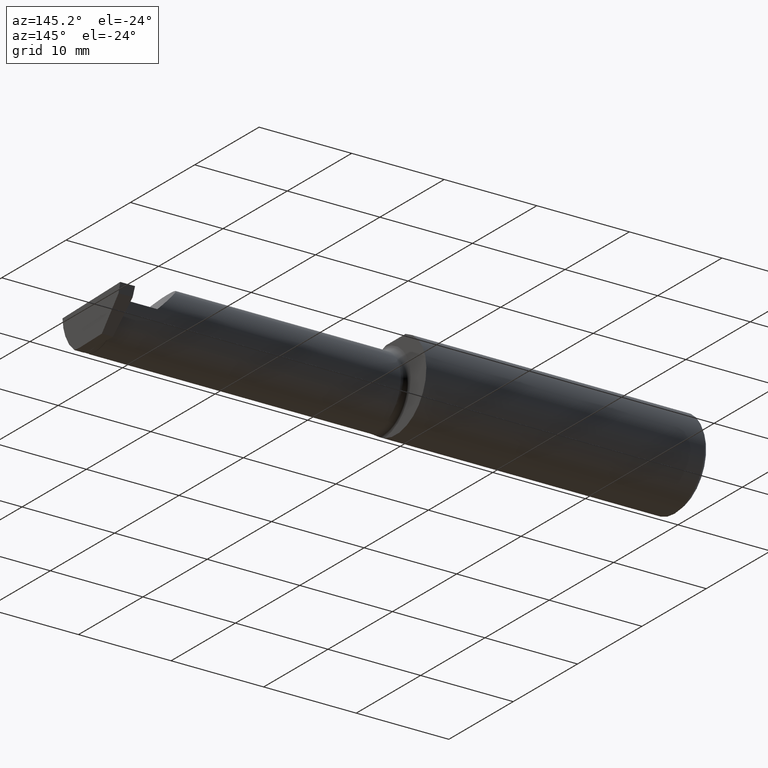
[diagram: clean part render]
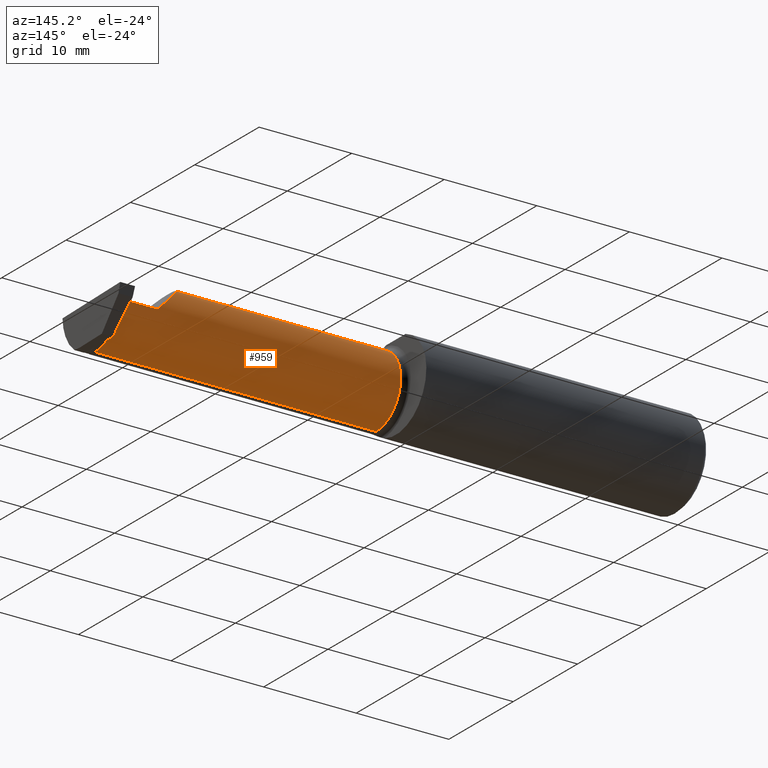
[diagram: same view with one face highlighted and labeled with its STEP entity id]
A machine part, auxiliary view. The second image highlights one B-rep face of the part: STEP entity #959.
In plain terms, the highlighted cylindrical surface (partial cylindrical patch) has radius 3.81 mm, axis along (-1, -0, -0).
Its self-contained STEP definition (entity closure, byte-faithful):
#1 = DIRECTION ( 'NONE',  ( 1.000000000000000000, 0.000000000000000000, 0.000000000000000000 ) ) ;
#3 = DIRECTION ( 'NONE',  ( -1.000000000000000000, -0.000000000000000000, -0.000000000000000000 ) ) ;
#33 = ORIENTED_EDGE ( 'NONE', *, *, #463, .T. ) ;
#66 = ORIENTED_EDGE ( 'NONE', *, *, #147, .T. ) ;
#81 = LINE ( 'NONE', #392, #120 ) ;
#118 = CARTESIAN_POINT ( 'NONE',  ( 1.199999999999999956, -0.08334999999999995191, -0.1499999999999999667 ) ) ;
#120 = VECTOR ( 'NONE', #1, 39.37007874015748143 ) ;
#129 = DIRECTION ( 'NONE',  ( 0.000000000000000000, 0.000000000000000000, 1.000000000000000000 ) ) ;
#131 = ORIENTED_EDGE ( 'NONE', *, *, #570, .T. ) ;
#147 = EDGE_CURVE ( 'NONE', #209, #351, #1016, .T. ) ;
#175 = EDGE_CURVE ( 'NONE', #592, #462, #643, .T. ) ;
#178 = VERTEX_POINT ( 'NONE', #1024 ) ;
#196 = LINE ( 'NONE', #118, #354 ) ;
#209 = VERTEX_POINT ( 'NONE', #221 ) ;
#220 = CARTESIAN_POINT ( 'NONE',  ( 2.417584115952534418, 0.05145648350381229474, -0.06650224100886772960 ) ) ;
#221 = CARTESIAN_POINT ( 'NONE',  ( 2.110000000000000764, -0.08334999999999996578, 0.1499999999999999667 ) ) ;
#293 = CARTESIAN_POINT ( 'NONE',  ( 2.420601194472355555, -0.04414772474446863187, -0.1461247700062901222 ) ) ;
#348 = EDGE_CURVE ( 'NONE', #351, #998, #81, .T. ) ;
#351 = VERTEX_POINT ( 'NONE', #398 ) ;
#354 = VECTOR ( 'NONE', #414, 39.37007874015748143 ) ;
#369 = CARTESIAN_POINT ( 'NONE',  ( 2.420047394350707926, -0.008191921905024622530, -0.1301800509972589059 ) ) ;
#385 = AXIS2_PLACEMENT_3D ( 'NONE', #1028, #534, #129 ) ;
#392 = CARTESIAN_POINT ( 'NONE',  ( 1.199999999999999956, 0.06665000000000001479, 1.592040838891560081E-16 ) ) ;
#394 = CARTESIAN_POINT ( 'NONE',  ( 2.415000000000238956, 0.06664999999976041478, 1.402892712935740666E-17 ) ) ;
#398 = CARTESIAN_POINT ( 'NONE',  ( 2.260000000000000231, 0.06664999999999998703, 2.939152317953647352E-17 ) ) ;
#414 = DIRECTION ( 'NONE',  ( -1.000000000000000000, -0.000000000000000000, -0.000000000000000000 ) ) ;
#427 = CARTESIAN_POINT ( 'NONE',  ( 1.225000000000000089, -0.08334999999999995191, -0.1499999999999999667 ) ) ;
#457 = AXIS2_PLACEMENT_3D ( 'NONE', #969, #3, #821 ) ;
#462 = VERTEX_POINT ( 'NONE', #427 ) ;
#463 = EDGE_CURVE ( 'NONE', #178, #462, #196, .T. ) ;
#464 = CARTESIAN_POINT ( 'NONE',  ( 2.417917589723265870, 0.04676325656223040417, -0.07527902610844594555 ) ) ;
#465 = CARTESIAN_POINT ( 'NONE',  ( 2.260000000000000231, 0.06664999999999998703, 2.939152317953647352E-17 ) ) ;
#497 = CARTESIAN_POINT ( 'NONE',  ( 1.199999999999999956, -0.08334999999999996578, 0.1499999999999999667 ) ) ;
#534 = DIRECTION ( 'NONE',  ( -1.000000000000000000, -0.000000000000000000, -0.000000000000000000 ) ) ;
#541 = CARTESIAN_POINT ( 'NONE',  ( 2.416485557519925553, 0.06268191249667394438, -0.03944647953904345528 ) ) ;
#570 = EDGE_CURVE ( 'NONE', #998, #178, #607, .T. ) ;
#588 = DIRECTION ( 'NONE',  ( -1.000000000000000000, -0.000000000000000000, -0.000000000000000000 ) ) ;
#592 = VERTEX_POINT ( 'NONE', #1018 ) ;
#605 = CARTESIAN_POINT ( 'NONE',  ( 2.418778796847718127, 0.02964324880581893987, -0.09913906102355041217 ) ) ;
#607 = B_SPLINE_CURVE_WITH_KNOTS ( 'NONE', 3,
 ( #713, #949, #541, #220, #464, #1036, #605, #702, #697, #369, #1027, #293, #931, #624 ),
 .UNSPECIFIED., .F., .F.,
 ( 4, 2, 2, 2, 2, 2, 4 ),
 ( 0.000000000000000000, 0.001502809041485969740, 0.002254213562228954502, 0.003005618082971939047, 0.003757022603714922724, 0.004508427124457907269, 0.006011236165943876358 ),
 .UNSPECIFIED. ) ;
#624 = CARTESIAN_POINT ( 'NONE',  ( 2.420802669072652957, -0.08335000000000181153, -0.1499999999999999112 ) ) ;
#631 = CARTESIAN_POINT ( 'NONE',  ( 2.172132034355964691, 0.06665000000000009805, 0.08786796564403566434 ) ) ;
#643 = CIRCLE ( 'NONE', #385, 0.1499999999999999667 ) ;
#656 = LINE ( 'NONE', #497, #735 ) ;
#659 = CYLINDRICAL_SURFACE ( 'NONE', #457, 0.1499999999999999667 ) ;
#697 = CARTESIAN_POINT ( 'NONE',  ( 2.419625853368212454, 0.008070055702242489443, -0.1193229055796841687 ) ) ;
#698 = CARTESIAN_POINT ( 'NONE',  ( 2.110000000000000764, 0.004517965644035819121, 0.1499999999999999944 ) ) ;
#702 = CARTESIAN_POINT ( 'NONE',  ( 2.419340708857844024, 0.01578456816674096361, -0.1129971906319743175 ) ) ;
#713 = CARTESIAN_POINT ( 'NONE',  ( 2.415000000000238956, 0.06664999999976041478, 1.402892712935740666E-17 ) ) ;
#718 = FACE_OUTER_BOUND ( 'NONE', #918, .T. ) ;
#735 = VECTOR ( 'NONE', #588, 39.37007874015748143 ) ;
#789 = ORIENTED_EDGE ( 'NONE', *, *, #175, .F. ) ;
#792 = ORIENTED_EDGE ( 'NONE', *, *, #348, .T. ) ;
#821 = DIRECTION ( 'NONE',  ( 0.000000000000000000, 0.000000000000000000, 1.000000000000000000 ) ) ;
#844 = ORIENTED_EDGE ( 'NONE', *, *, #850, .F. ) ;
#850 = EDGE_CURVE ( 'NONE', #209, #592, #656, .T. ) ;
#918 = EDGE_LOOP ( 'NONE', ( #131, #33, #789, #844, #66, #792 ) ) ;
#931 = CARTESIAN_POINT ( 'NONE',  ( 2.420823134229813434, -0.06360486374412215038, -0.1500000000000001887 ) ) ;
#949 = CARTESIAN_POINT ( 'NONE',  ( 2.415759755271861930, 0.06664999999591599000, -0.01979751736062614759 ) ) ;
#956 = CARTESIAN_POINT ( 'NONE',  ( 2.110000000000000764, -0.08334999999999996578, 0.1499999999999999667 ) ) ;
#959 = ADVANCED_FACE ( 'NONE', ( #718 ), #659, .T. ) ;
#969 = CARTESIAN_POINT ( 'NONE',  ( 1.199999999999999956, -0.08334999999999996578, 0.000000000000000000 ) ) ;
#998 = VERTEX_POINT ( 'NONE', #394 ) ;
#1016 =( BOUNDED_CURVE ( )  B_SPLINE_CURVE ( 3, ( #956, #698, #631, #465 ),
 .UNSPECIFIED., .F., .T. ) 
 B_SPLINE_CURVE_WITH_KNOTS ( ( 4, 4 ),
 ( 0.000000000000000000, 1.570796326794897446 ),
 .UNSPECIFIED. ) 
 CURVE ( )  GEOMETRIC_REPRESENTATION_ITEM ( )  RATIONAL_B_SPLINE_CURVE ( ( 1.000000000000000000, 0.8047378541243648264, 0.8047378541243648264, 1.000000000000000000 ) ) 
 REPRESENTATION_ITEM ( '' )  );
#1018 = CARTESIAN_POINT ( 'NONE',  ( 1.225000000000000089, -0.08334999999999996578, 0.1499999999999999667 ) ) ;
#1024 = CARTESIAN_POINT ( 'NONE',  ( 2.420802669072652957, -0.08335000000000181153, -0.1499999999999999112 ) ) ;
#1027 = CARTESIAN_POINT ( 'NONE',  ( 2.420195206333489057, -0.01680787643114268690, -0.1347941485732867817 ) ) ;
#1028 = CARTESIAN_POINT ( 'NONE',  ( 1.225000000000000089, -0.08334999999999996578, 0.000000000000000000 ) ) ;
#1036 = CARTESIAN_POINT ( 'NONE',  ( 2.418501686259251215, 0.03584079016565965004, -0.09159665302155191313 ) ) ;